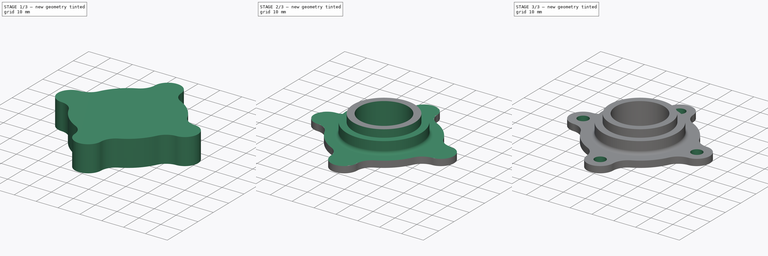
[diagram: build sequence overview — one tinted view per stage of 3, left to right]
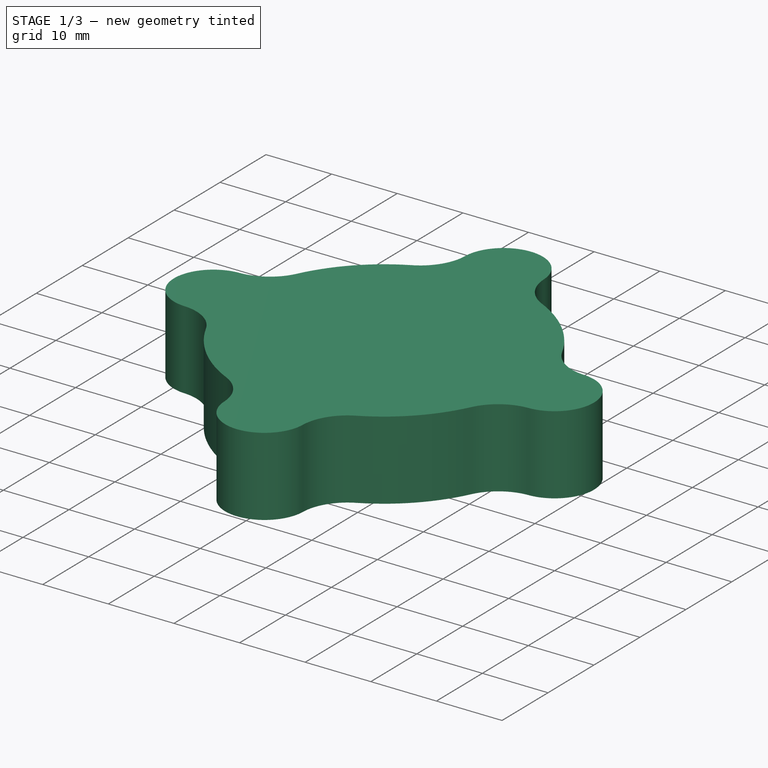
[diagram: stage 1 of 3 — iso view after this stage's code; geometry added in this stage tinted green]
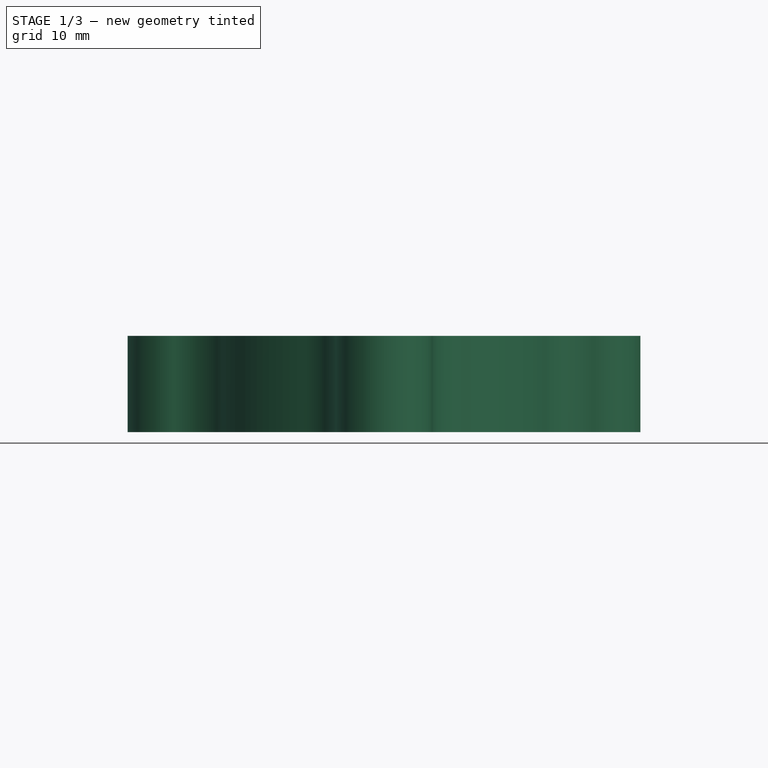
[diagram: stage 1 of 3 — front view after this stage's code; geometry added in this stage tinted green]
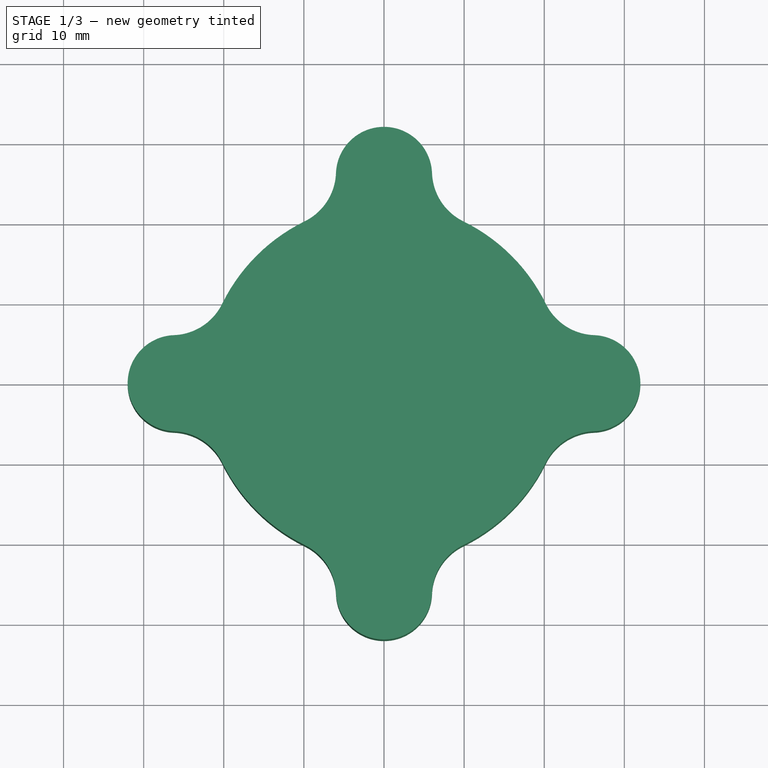
[diagram: stage 1 of 3 — top view after this stage's code; geometry added in this stage tinted green]
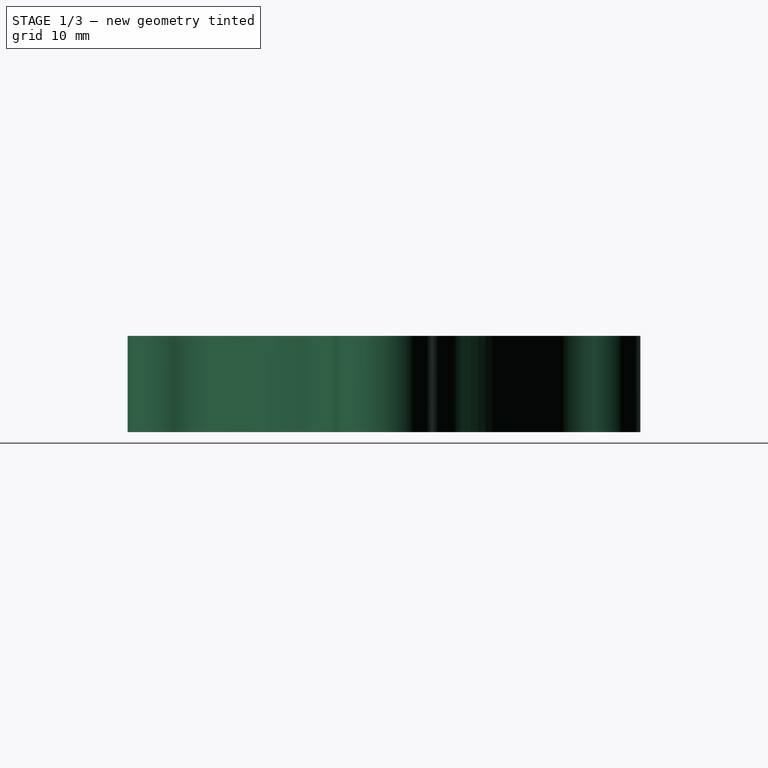
[diagram: stage 1 of 3 — right view after this stage's code; geometry added in this stage tinted green]
FCSTD DOCUMENT  (FreeCAD 0.18R4 (GitTag))
Label: Part2
License: All rights reserved
LicenseURL: http://en.wikipedia.org/wiki/All_rights_reserved
objects: Sketcher::SketchObject×5, PartDesign::PolarPattern×2, PartDesign::Pocket×2, PartDesign::Pad×1, PartDesign::SubtractivePipe×1, PartDesign::Body×1
note: 16 computed .brp shape members not serialized (recipe doc carries the construction recipe); baked Part::Feature solids carry a one-line shape summary decoded from their .brp

FEATURE [Sketcher::SketchObject] Sketch
  MapMode = 5
  Support = -> [XY_Plane]
  sketch-geometry (7):
    g0: ArcOfCircle CenterX=0 CenterY=0 CenterZ=0 NormalX=0 NormalY=0 NormalZ=1 AngleXU=0 Radius=22.5 StartAngle=0.785398 EndAngle=1.11478
    g1: LineSegment StartX=0 StartY=0 StartZ=0 EndX=15.9099 EndY=15.9099 EndZ=0
    g2: LineSegment StartX=-15.9099 StartY=15.9099 StartZ=0 EndX=0 EndY=0 EndZ=0
    g3: ArcOfCircle CenterX=4e-16 CenterY=26 CenterZ=0 NormalX=0 NormalY=0 NormalZ=1 AngleXU=0 Radius=6 StartAngle=0.0373608 EndAngle=3.10423
    g4: ArcOfCircle CenterX=-12.9909 CenterY=26.4856 CenterZ=0 NormalX=0 NormalY=0 NormalZ=1 AngleXU=0 Radius=7 StartAngle=5.1684 EndAngle=6.24582
    g5: ArcOfCircle CenterX=12.9909 CenterY=26.4856 CenterZ=0 NormalX=0 NormalY=0 NormalZ=1 AngleXU=0 Radius=7 StartAngle=3.17895 EndAngle=4.25638
    g6: ArcOfCircle CenterX=0 CenterY=0 CenterZ=0 NormalX=0 NormalY=0 NormalZ=1 AngleXU=0 Radius=22.5 StartAngle=2.02681 EndAngle=2.35619
  constraints (20):
    c: Coincident(g1,g0)
    c: Coincident(g1,g0)
    c: Coincident(g2,g0)
    c: Coincident(g2,g6)
    c: Angle(g2,g1) = 4.71239
    c: Coincident(g-1,g0)
    c: Horizontal(g0,g6)
    c: Radius(g0) = 22.5
    c: Radius(g3) = 6
    c: DistanceY(g-1,g3) = 26
    c: Radius(g4) = 7
    c: Tangent(g4,g0)
    c: Horizontal(g5,g4)
    c: Coincident(g0,g6)
    c: Symmetric(g4,g0,g-2)
    c: Symmetric(g3,g3,g-2)
    c: Coincident(g5,g0)
    c: Coincident(g5,g3)
    c: Tangent(g3,g4) = 1.5708
    c: Coincident(g6,g4)
FEATURE [PartDesign::Pad] Pad
  Length = 12
  Length2 = 100
  Profile = -> Sketch
  Type = 0
FEATURE [PartDesign::PolarPattern] PolarPattern
  Angle = 360
  Axis = -> Sketch [N_Axis]
  BaseFeature = -> Pad
  Occurrences = 4
  Originals = -> [Pad]
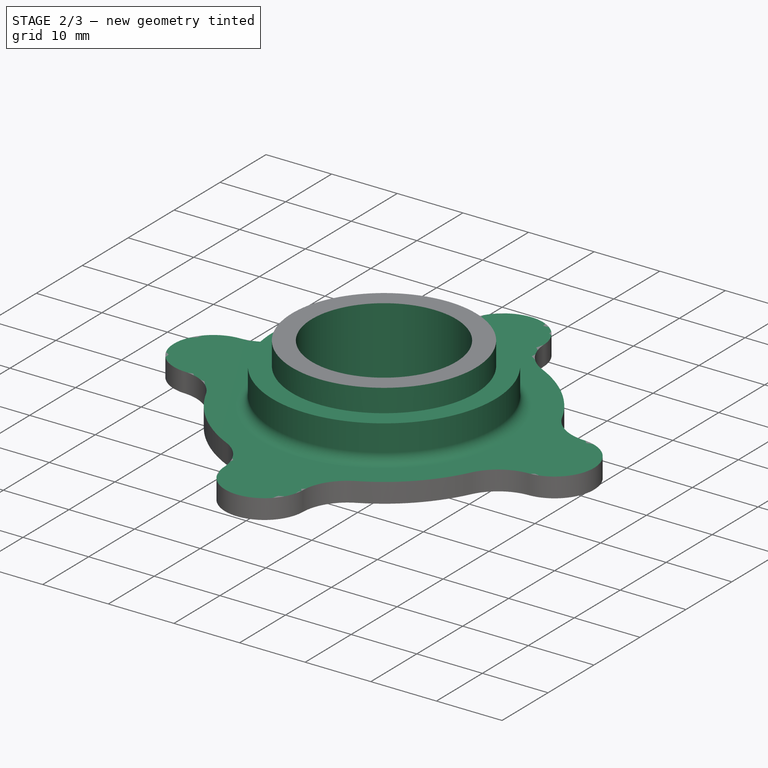
[diagram: stage 2 of 3 — iso view after this stage's code; geometry added in this stage tinted green]
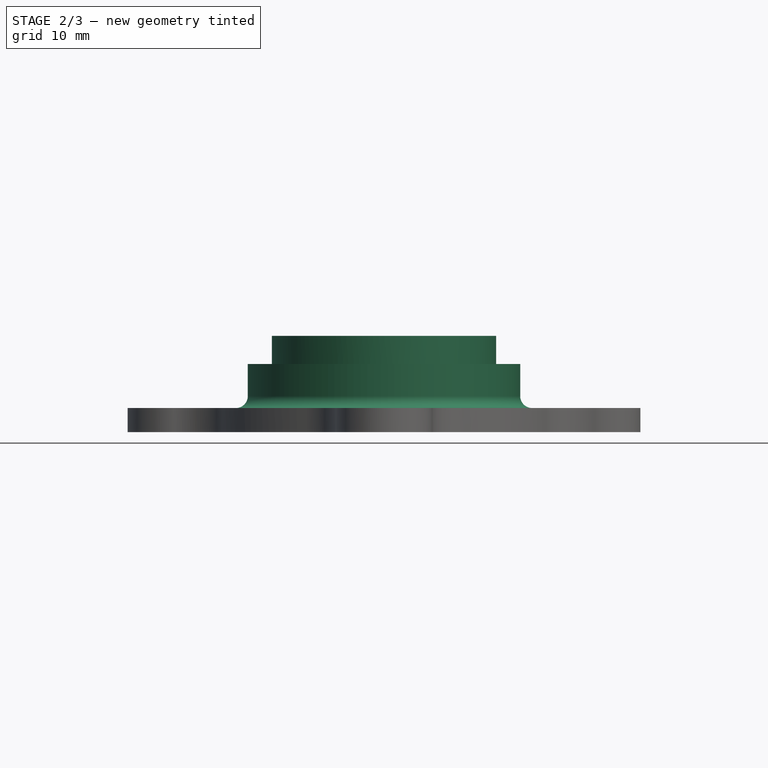
[diagram: stage 2 of 3 — front view after this stage's code; geometry added in this stage tinted green]
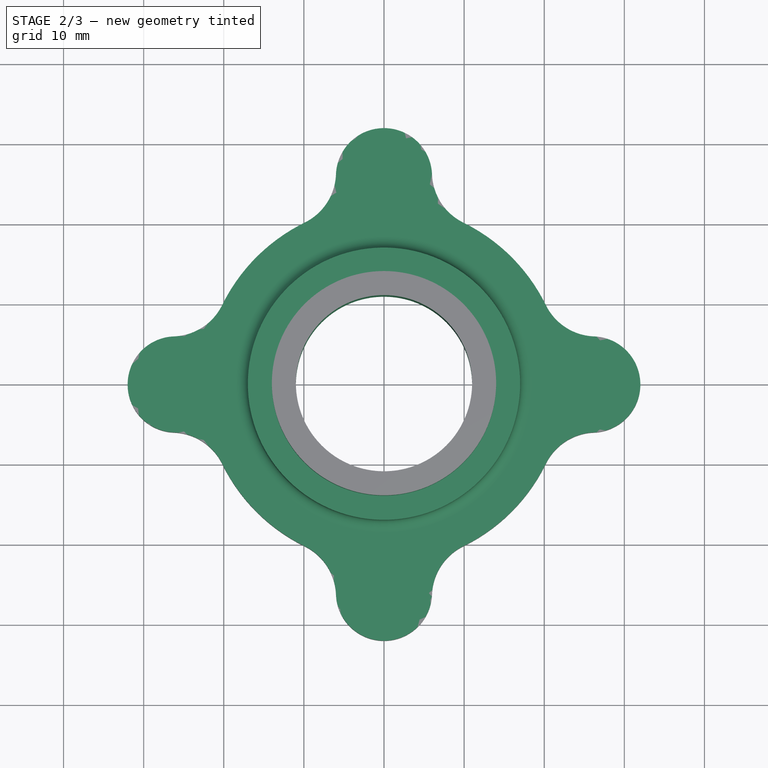
[diagram: stage 2 of 3 — top view after this stage's code; geometry added in this stage tinted green]
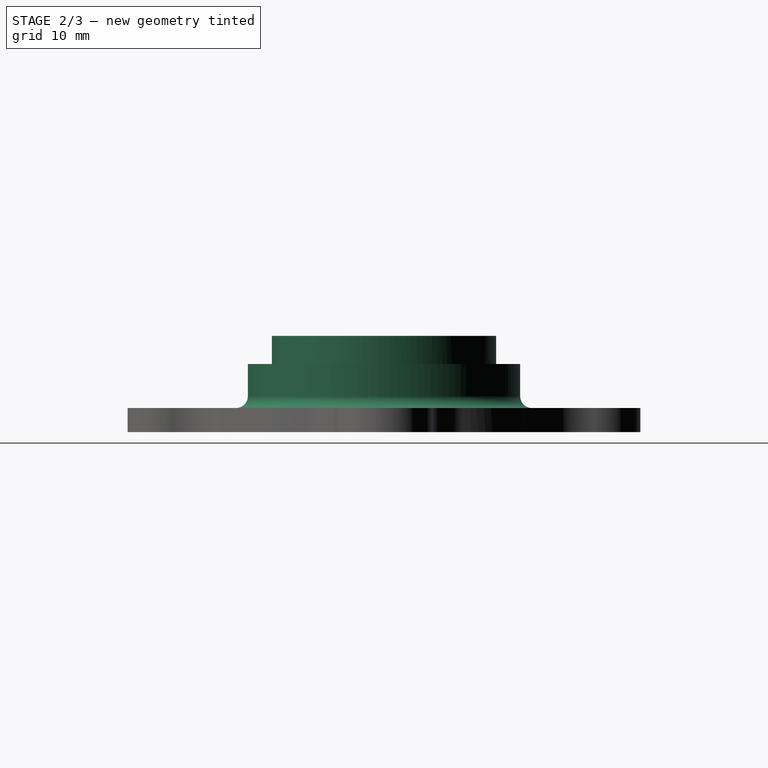
[diagram: stage 2 of 3 — right view after this stage's code; geometry added in this stage tinted green]
FEATURE [Sketcher::SketchObject] Sketch001
  MapMode = 5
  Placement = pos=(0,0,0) rot=(0.57735,0.57735,0.57735;2.0944rad)
  Support = -> [YZ_Plane]
  sketch-geometry (7):
    g0: LineSegment StartX=-14 StartY=12 StartZ=0 EndX=-32 EndY=12 EndZ=0
    g1: LineSegment StartX=-32 StartY=12 StartZ=0 EndX=-32 EndY=3 EndZ=0
    g2: LineSegment StartX=-32 StartY=3 StartZ=0 EndX=-18.5 EndY=3 EndZ=0
    g3: LineSegment StartX=-17 StartY=4.5 StartZ=0 EndX=-17 EndY=8.5 EndZ=0
    g4: LineSegment StartX=-17 StartY=8.5 StartZ=0 EndX=-14 EndY=8.5 EndZ=0
    g5: LineSegment StartX=-14 StartY=8.5 StartZ=0 EndX=-14 EndY=12 EndZ=0
    g6: ArcOfCircle CenterX=-18.5 CenterY=4.5 CenterZ=0 NormalX=0 NormalY=0 NormalZ=1 AngleXU=0 Radius=1.5 StartAngle=4.71239 EndAngle=6.28319
  constraints (22):
    c: Coincident(g0,g1)
    c: Coincident(g1,g2)
    c: Coincident(g3,g4)
    c: Coincident(g4,g5)
    c: Coincident(g5,g0)
    c: Horizontal(g0)
    c: Horizontal(g2)
    c: Horizontal(g4)
    c: Vertical(g1)
    c: Vertical(g3)
    c: Vertical(g5)
    c: Distance(g0) = 18
    c: DistanceX(g-2,g0) = -32
    c: DistanceY(g1,g3) = 5.5
    c: Distance(g5) = 3.5
    c: Radius(g6) = 1.5
    c: Vertical(g6,g6)
    c: Horizontal(g6,g6)
    c: Coincident(g6,g3)
    c: Coincident(g6,g2)
    c: Distance(g4) = 3
    c: DistanceY(g-1,g1) = 3
FEATURE [Sketcher::SketchObject] Sketch002
  MapMode = 5
  Placement = pos=(0,0,12) rot=(0,0,1;0rad)
  Support = -> [PolarPattern]
  sketch-geometry (1):
    g0: Circle CenterX=0 CenterY=0 CenterZ=0 NormalX=0 NormalY=0 NormalZ=1 AngleXU=0 Radius=14
  constraints (2):
    c: Radius(g0) = 14
    c: Coincident(g0,g-1)
FEATURE [PartDesign::SubtractivePipe] SubtractivePipe
  AuxilleryCurvelinear = true
  AuxillerySpineTangent = false
  BaseFeature = -> PolarPattern
  Binormal = (0,0,0)
  Mode = 0
  Profile = -> Sketch001
  Spine = -> Sketch002 [Edge1]
  SpineTangent = false
  Transformation = 0
  Transition = 0
FEATURE [Sketcher::SketchObject] Sketch003
  MapMode = 5
  Placement = pos=(0,0,12) rot=(0,0,1;0rad)
  Support = -> [SubtractivePipe]
  sketch-geometry (1):
    g0: Circle CenterX=0 CenterY=0 CenterZ=0 NormalX=0 NormalY=0 NormalZ=1 AngleXU=0 Radius=11
  constraints (2):
    c: Radius(g0) = 11
    c: Coincident(g0,g-1)
FEATURE [PartDesign::Pocket] Pocket
  BaseFeature = -> SubtractivePipe
  Length = 5
  Length2 = 100
  Profile = -> Sketch003
  Type = 1
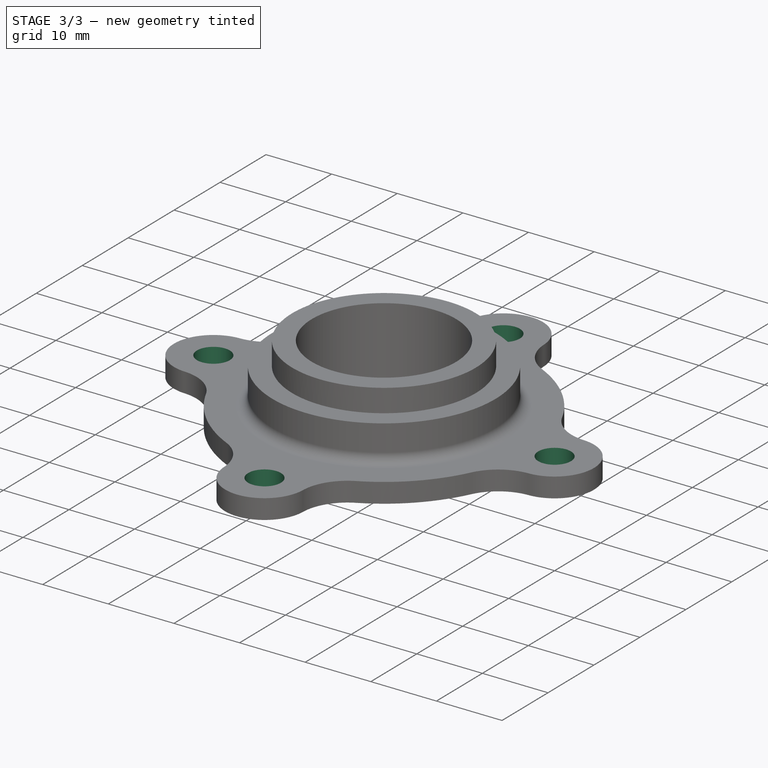
[diagram: stage 3 of 3 — iso view after this stage's code; geometry added in this stage tinted green]
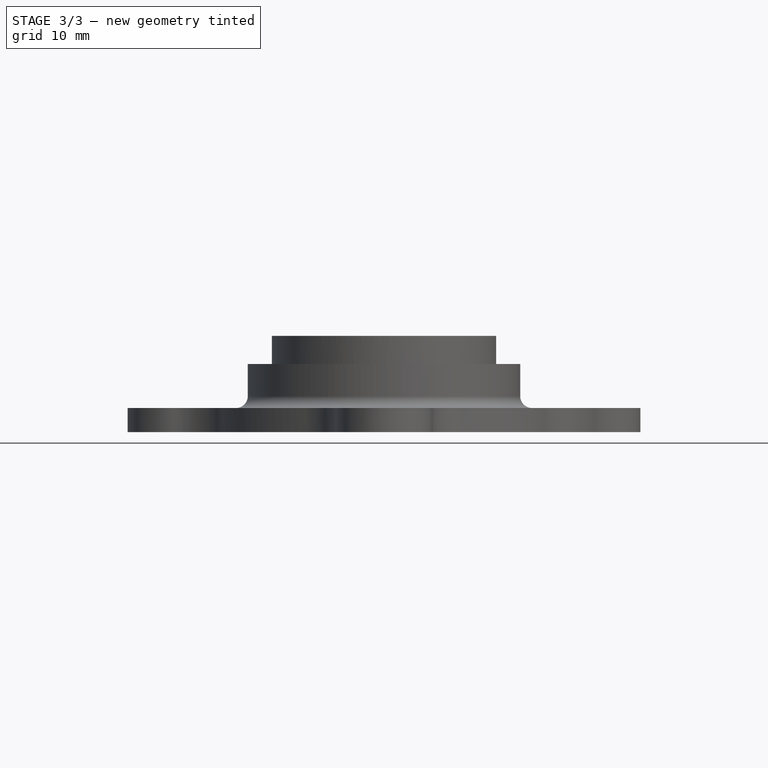
[diagram: stage 3 of 3 — front view after this stage's code; geometry added in this stage tinted green]
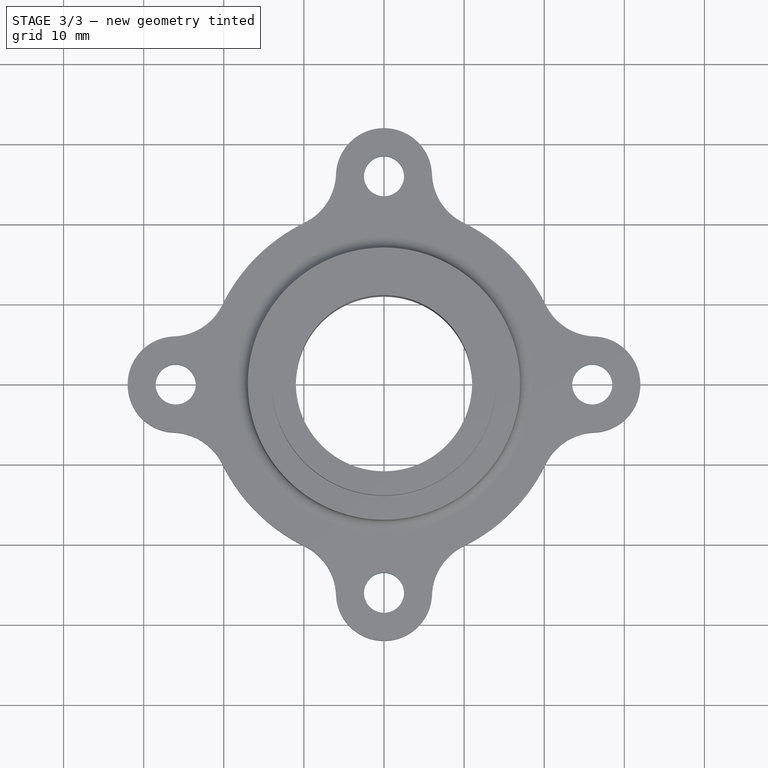
[diagram: stage 3 of 3 — top view after this stage's code; geometry added in this stage tinted green]
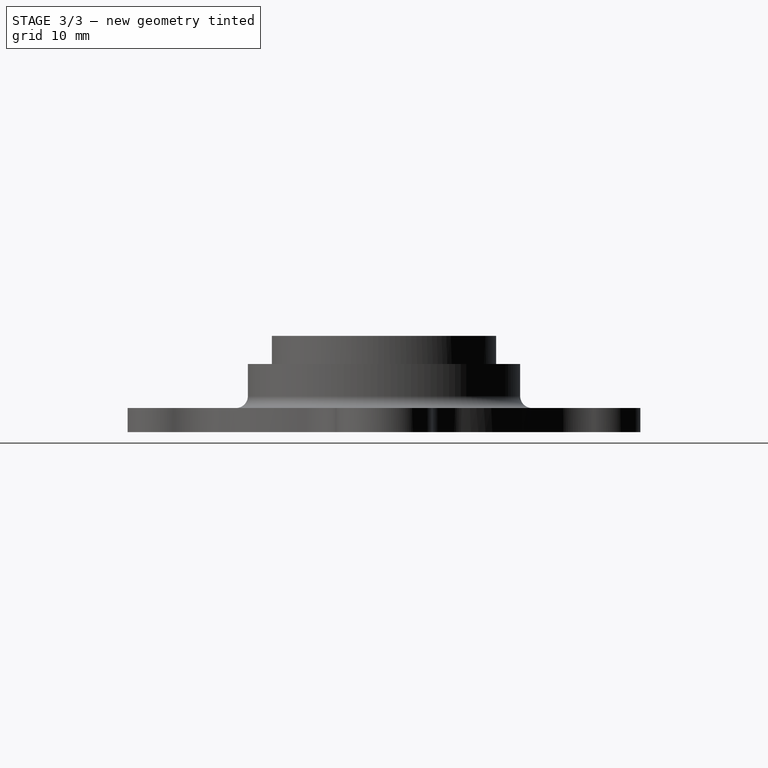
[diagram: stage 3 of 3 — right view after this stage's code; geometry added in this stage tinted green]
FEATURE [Sketcher::SketchObject] Sketch004
  MapMode = 5
  Placement = pos=(0,0,3) rot=(0,0,1;0rad)
  Support = -> [Pocket]
  sketch-geometry (1):
    g0: Circle CenterX=0 CenterY=26 CenterZ=0 NormalX=0 NormalY=0 NormalZ=1 AngleXU=0 Radius=2.5
  constraints (3):
    c: Radius(g0) = 2.5
    c: DistanceY(g-1,g0) = 26
    c: PointOnObject(g0,g-2)
FEATURE [PartDesign::Pocket] Pocket001
  BaseFeature = -> Pocket
  Length = 5
  Length2 = 100
  Profile = -> Sketch004
  Type = 1
FEATURE [PartDesign::PolarPattern] PolarPattern001
  Angle = 360
  Axis = -> Sketch004 [N_Axis]
  BaseFeature = -> Pocket001
  Occurrences = 4
  Originals = -> [Pocket001]
FEATURE [PartDesign::Body] Body
  Group = -> [Sketch,Pad,PolarPattern,Sketch001,Sketch002,SubtractivePipe,Sketch003,Pocket,Sketch004,Pocket001,PolarPattern001]
  Origin = -> Origin
  Tip = -> PolarPattern001
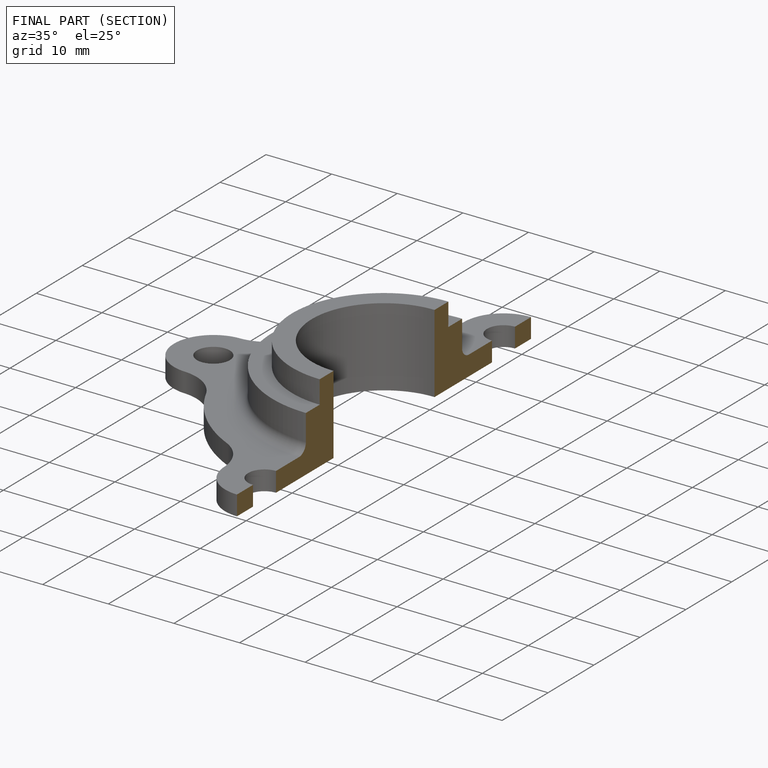
[diagram: finished part — half-section view (interior)]
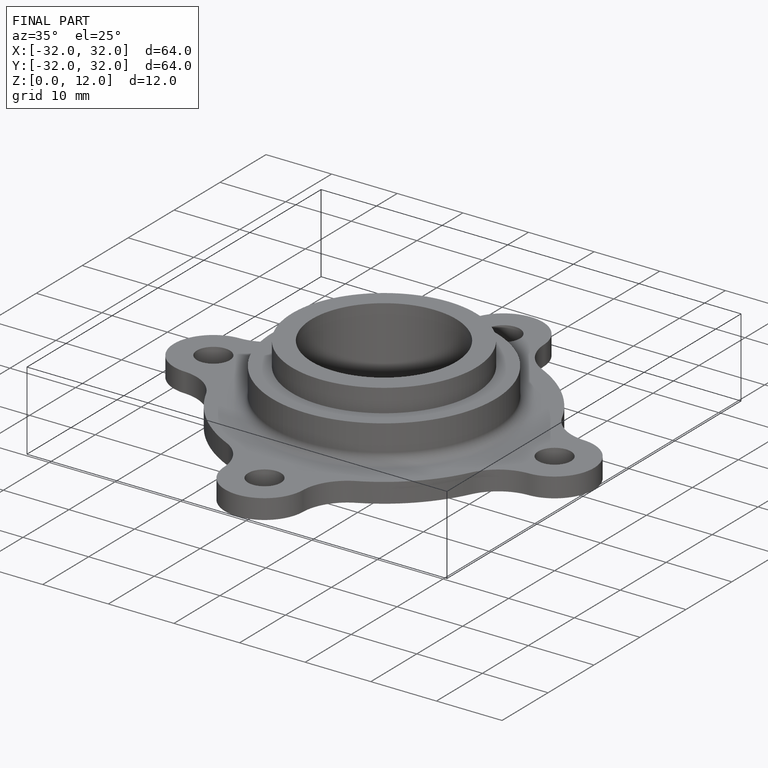
[diagram: finished part — iso view with bounding-box wireframe]
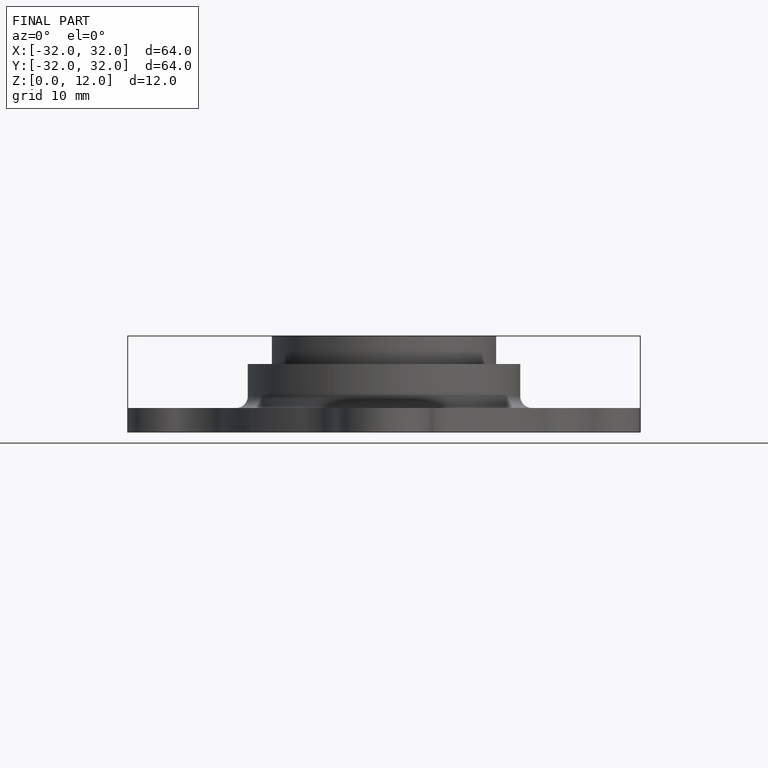
[diagram: finished part — front view with bounding-box wireframe]
